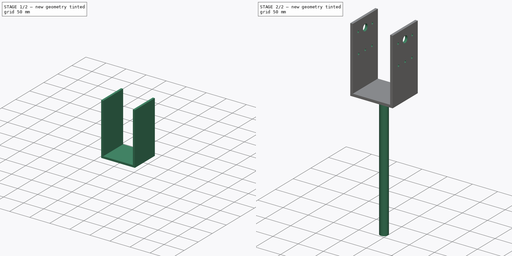
[diagram: build sequence overview — one tinted view per stage of 2, left to right]
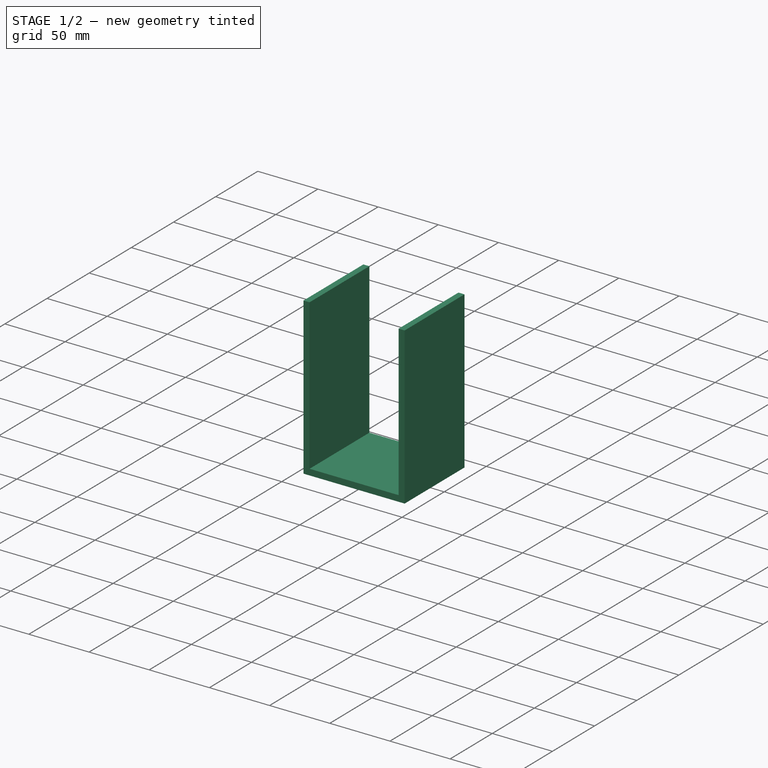
[diagram: stage 1 of 2 — iso view after this stage's code; geometry added in this stage tinted green]
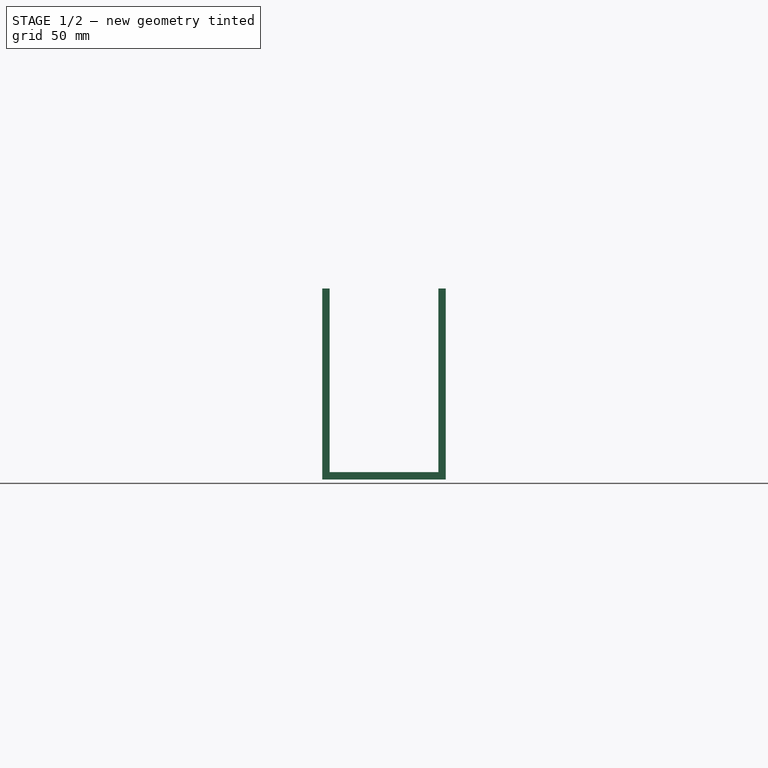
[diagram: stage 1 of 2 — front view after this stage's code; geometry added in this stage tinted green]
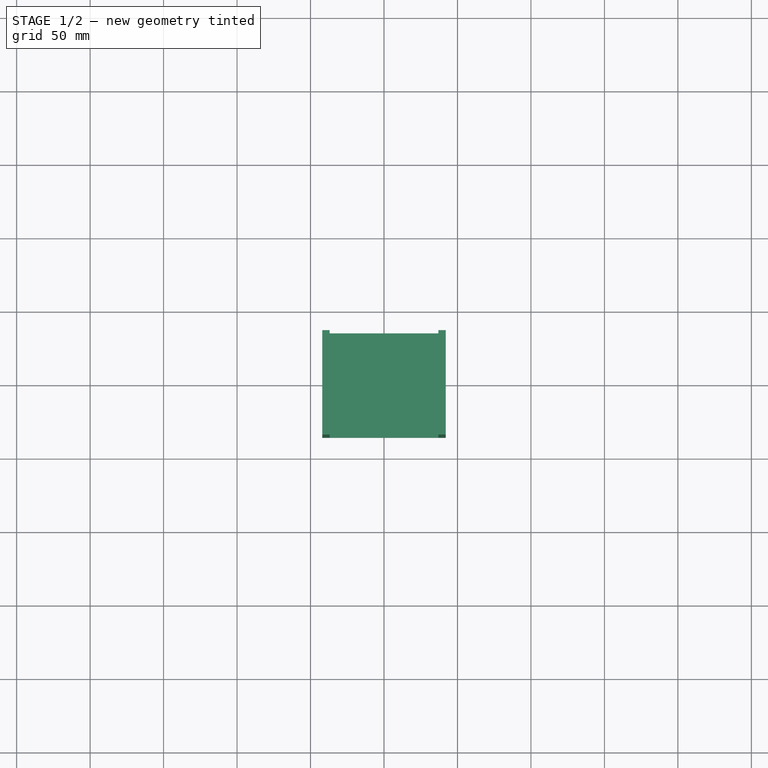
[diagram: stage 1 of 2 — top view after this stage's code; geometry added in this stage tinted green]
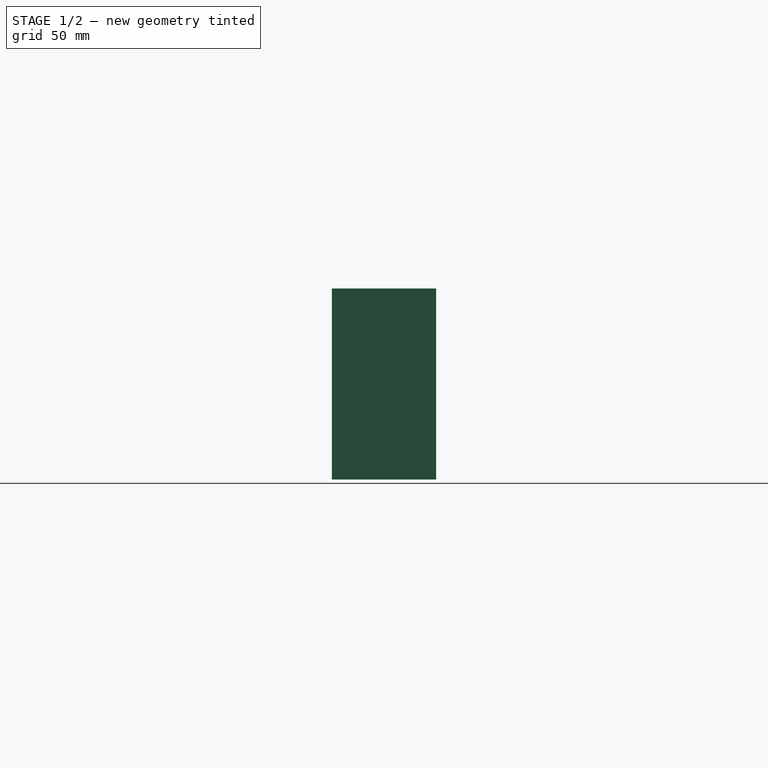
[diagram: stage 1 of 2 — right view after this stage's code; geometry added in this stage tinted green]
FCSTD DOCUMENT  (FreeCAD 0.15R4671 (Git))
Label: Footer_Type_U_L70
License: All rights reserved
LicenseURL: http://en.wikipedia.org/wiki/All_rights_reserved
objects: Sketcher::SketchObject×4, PartDesign::Pad×2, PartDesign::Pocket×2
note: 12 computed .brp shape members not serialized (recipe doc carries the construction recipe); baked Part::Feature solids carry a one-line shape summary decoded from their .brp

FEATURE [Sketcher::SketchObject] Sketch
  sketch-geometry (4):
    g0: LineSegment StartX=-42 StartY=35.5 StartZ=0 EndX=42 EndY=35.5 EndZ=0
    g1: LineSegment StartX=42 StartY=35.5 StartZ=0 EndX=42 EndY=-35.5 EndZ=0
    g2: LineSegment StartX=42 StartY=-35.5 StartZ=0 EndX=-42 EndY=-35.5 EndZ=0
    g3: LineSegment StartX=-42 StartY=-35.5 StartZ=0 EndX=-42 EndY=35.5 EndZ=0
  constraints (12):
    c: Coincident(g0,g1)
    c: Coincident(g1,g2)
    c: Coincident(g2,g3)
    c: Coincident(g3,g0)
    c: Horizontal(g0)
    c: Horizontal(g2)
    c: Vertical(g1)
    c: Vertical(g3)
    c: DistanceX(g0,g0) = 84
    c: DistanceX(g-1,g0) = -42
    c: DistanceY(g2,g0) = 71
    c: DistanceY(g-1,g0) = 35.5
FEATURE [PartDesign::Pad] Pad
  Length = 130
  Length2 = 100
  Sketch = -> Sketch
  Type = 0
FEATURE [Sketcher::SketchObject] Sketch001
  Placement = pos=(0,0,130) rot=(0,0,1;0rad)
  Support = -> Pad [Face6]
  sketch-geometry (4):
    g0: LineSegment StartX=-37 StartY=35.5 StartZ=0 EndX=37 EndY=35.5 EndZ=0
    g1: LineSegment StartX=37 StartY=35.5 StartZ=0 EndX=37 EndY=-35.5 EndZ=0
    g2: LineSegment StartX=37 StartY=-35.5 StartZ=0 EndX=-37 EndY=-35.5 EndZ=0
    g3: LineSegment StartX=-37 StartY=-35.5 StartZ=0 EndX=-37 EndY=35.5 EndZ=0
  constraints (12):
    c: Coincident(g0,g1)
    c: Coincident(g1,g2)
    c: Coincident(g2,g3)
    c: Coincident(g3,g0)
    c: Horizontal(g0)
    c: Horizontal(g2)
    c: Vertical(g1)
    c: Vertical(g3)
    c: DistanceX(g-1,g0) = -37
    c: DistanceY(g-1,g0) = 35.5
    c: DistanceY(g2,g0) = 71
    c: DistanceX(g0,g0) = 74
FEATURE [PartDesign::Pocket] Pocket
  Length = 125
  Sketch = -> Sketch001
  Type = 0
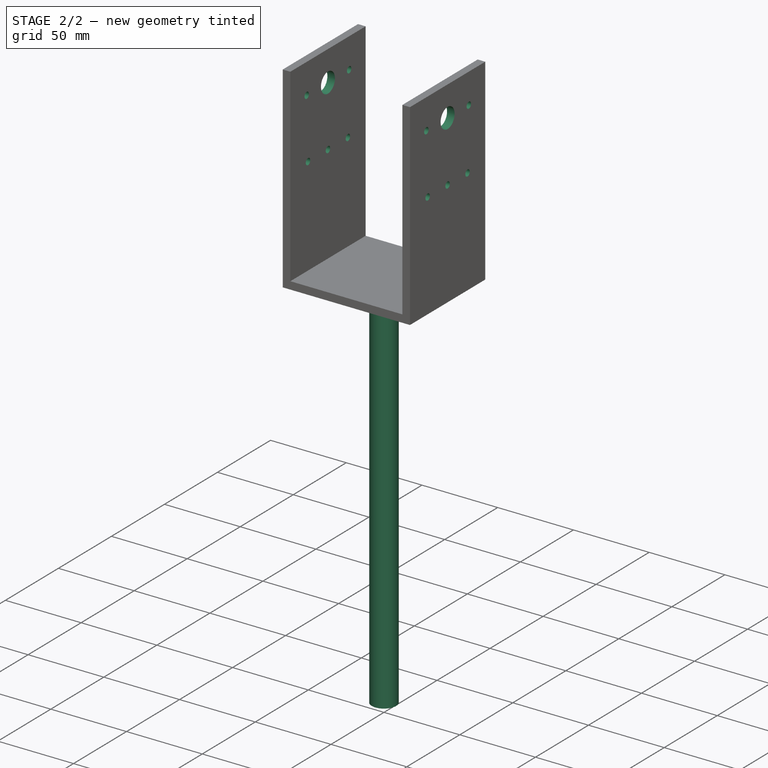
[diagram: stage 2 of 2 — iso view after this stage's code; geometry added in this stage tinted green]
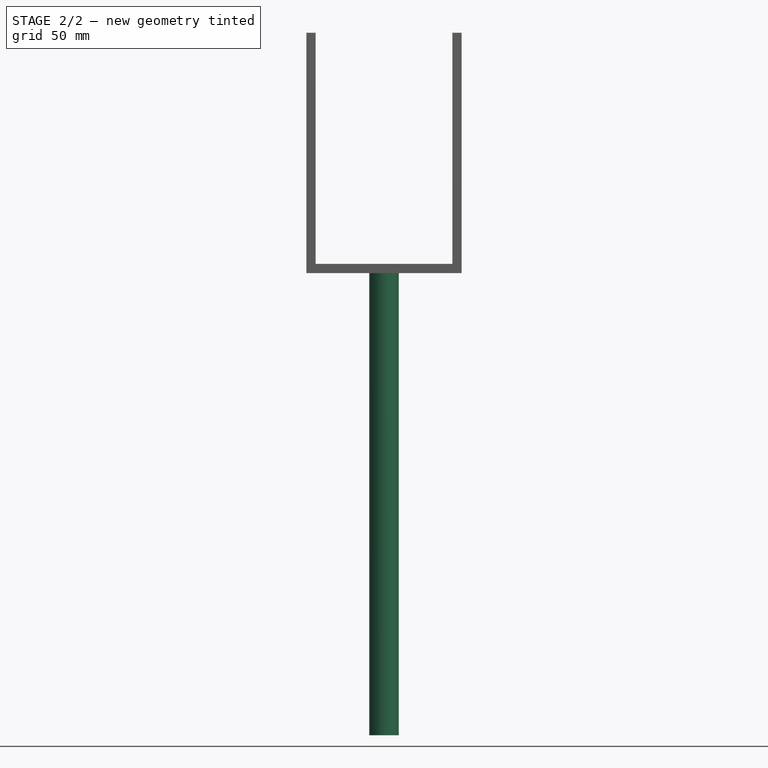
[diagram: stage 2 of 2 — front view after this stage's code; geometry added in this stage tinted green]
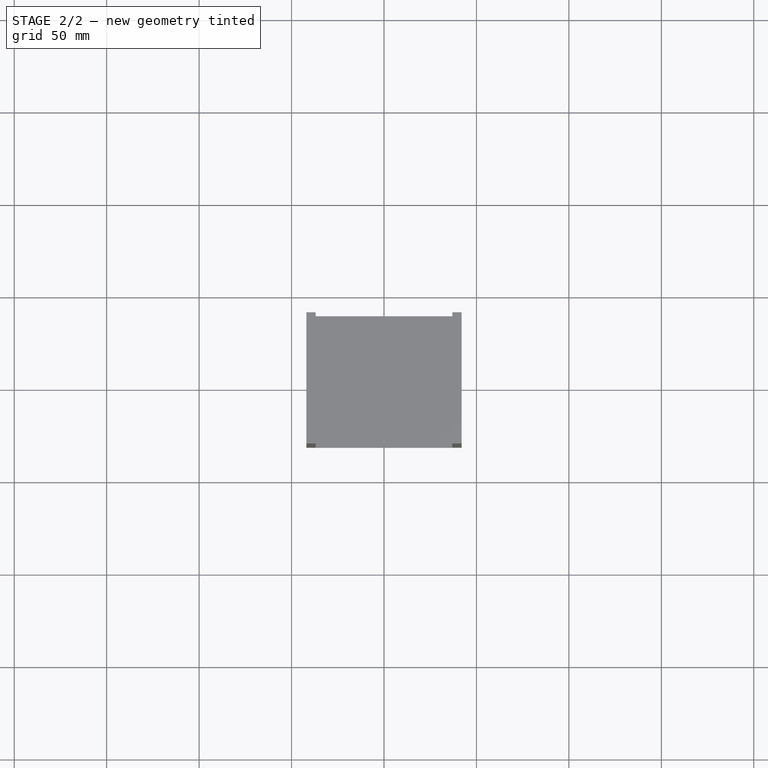
[diagram: stage 2 of 2 — top view after this stage's code; geometry added in this stage tinted green]
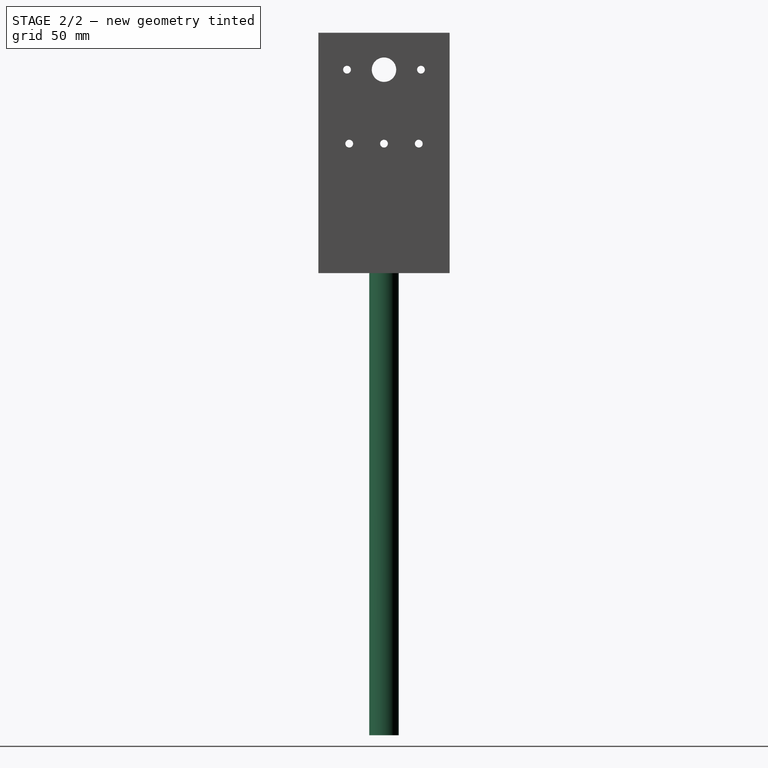
[diagram: stage 2 of 2 — right view after this stage's code; geometry added in this stage tinted green]
FEATURE [Sketcher::SketchObject] Sketch002
  Placement = pos=(0,0,0) rot=(1,0,0;3.14159rad)
  Support = -> Pocket [Face2]
  sketch-geometry (1):
    g0: Circle CenterX=0 CenterY=0 CenterZ=0 NormalX=0 NormalY=0 NormalZ=1 Radius=8
  constraints (1):
    c: Radius(g0) = 8
FEATURE [PartDesign::Pad] Pad001
  Length = 250
  Length2 = 100
  Sketch = -> Sketch002
  Type = 0
FEATURE [Sketcher::SketchObject] Sketch003
  Placement = pos=(42,0,0) rot=(0.57735,0.57735,0.57735;2.0944rad)
  Support = -> Pad001 [Face3]
  sketch-geometry (6):
    g0: Circle CenterX=-20 CenterY=110 CenterZ=0 NormalX=0 NormalY=0 NormalZ=1 Radius=2.1
    g1: Circle CenterX=20 CenterY=110 CenterZ=0 NormalX=0 NormalY=0 NormalZ=1 Radius=2.1
    g2: Circle CenterX=0 CenterY=110 CenterZ=0 NormalX=0 NormalY=0 NormalZ=1 Radius=6.6
    g3: Circle CenterX=0 CenterY=70 CenterZ=0 NormalX=0 NormalY=0 NormalZ=1 Radius=2.1
    g4: Circle CenterX=-18.8088 CenterY=70 CenterZ=0 NormalX=0 NormalY=0 NormalZ=1 Radius=2.1
    g5: Circle CenterX=18.8088 CenterY=70 CenterZ=0 NormalX=0 NormalY=0 NormalZ=1 Radius=2.1
  constraints (15):
    c: Radius(g1) = 2.1
    c: PointOnObject(g2,g-2)
    c: Radius(g2) = 6.6
    c: DistanceY(g-1,g2) = 110
    c: DistanceY(g1) = 110
    c: DistanceX(g2,g1) = 20
    c: PointOnObject(g3,g-2)
    c: Equal(g5,g1)
    c: Equal(g1,g3)
    c: Equal(g3,g4)
    c: Equal(g4,g0)
    c: DistanceY(g-1,g3) = 70
    c: DistanceY(g-1,g5) = 70
    c: Symmetric(g5,g4,g-2)
    c: Symmetric(g1,g0,g-2)
FEATURE [PartDesign::Pocket] Pocket001
  Length = 5
  Sketch = -> Sketch003
  Type = 1
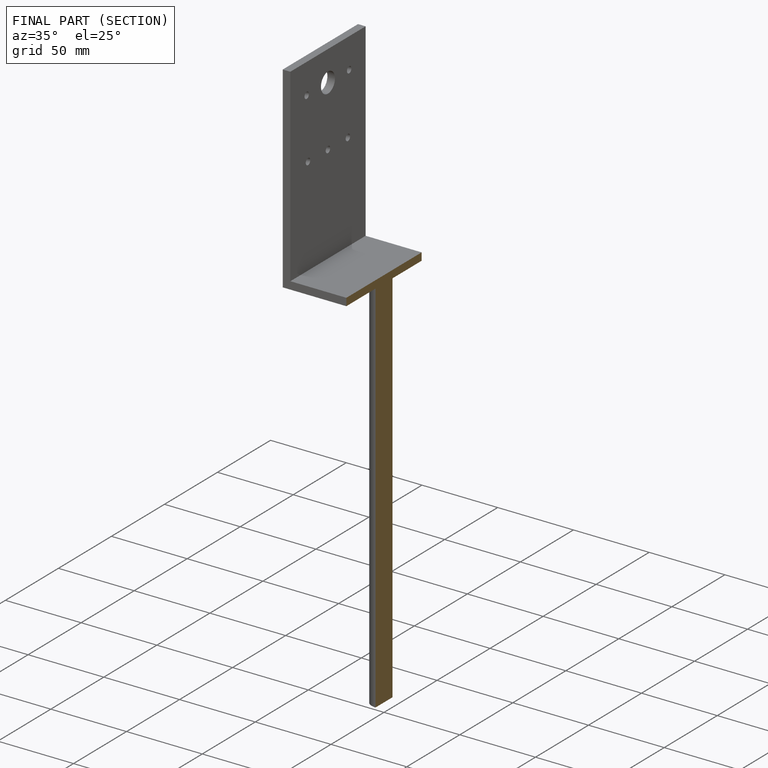
[diagram: finished part — half-section view (interior)]
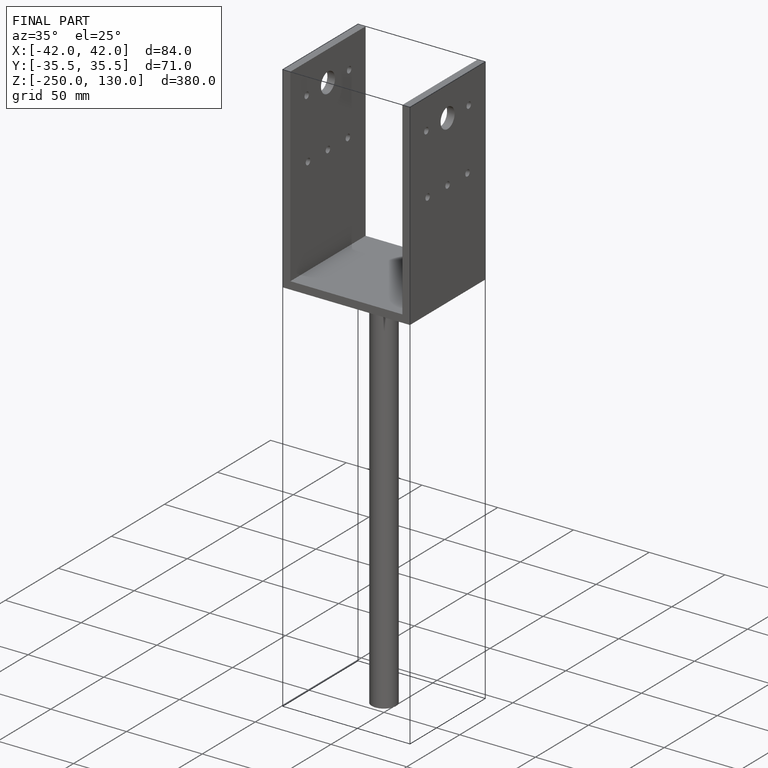
[diagram: finished part — iso view with bounding-box wireframe]
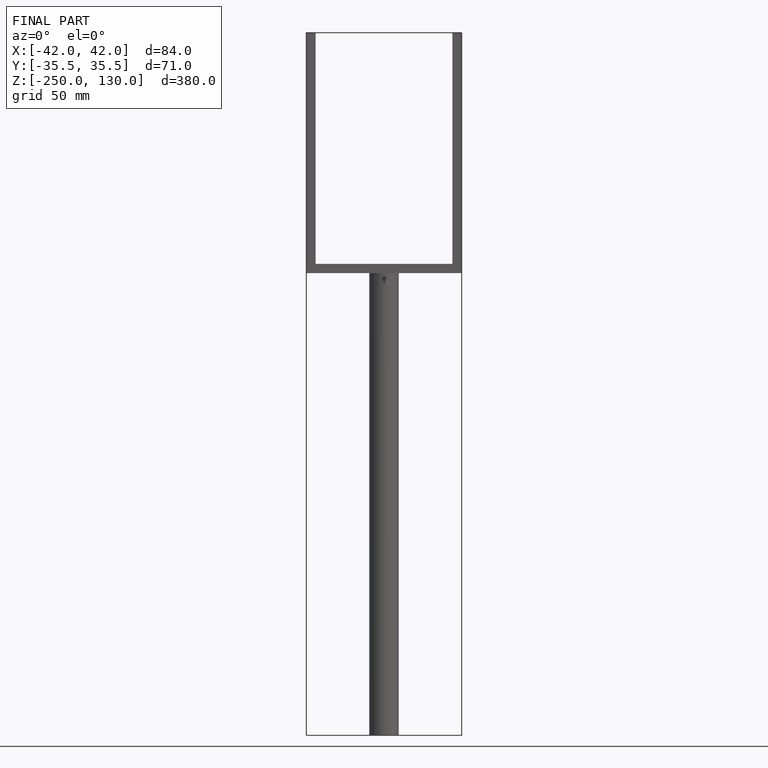
[diagram: finished part — front view with bounding-box wireframe]
